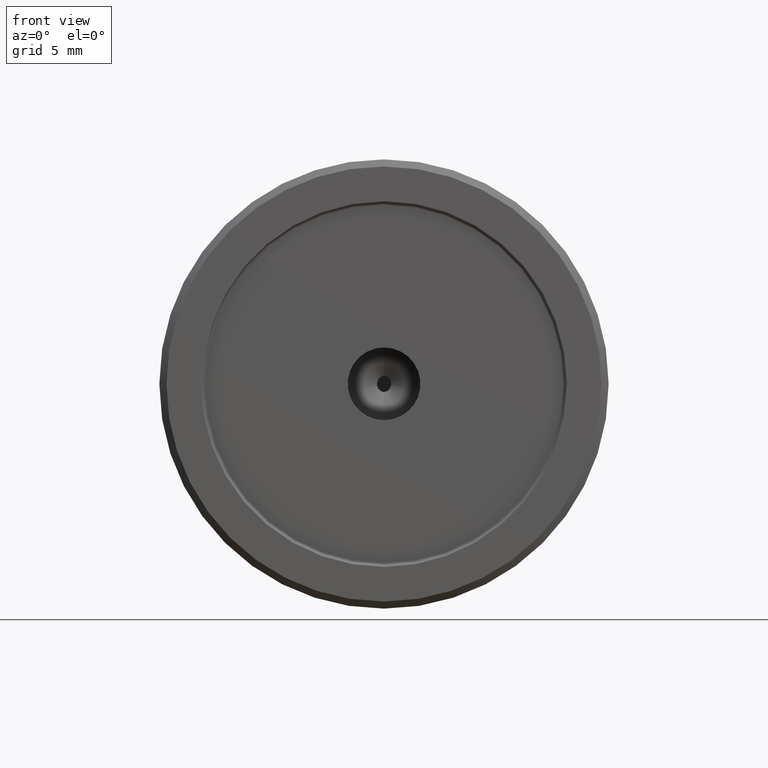
[diagram: clean part render]
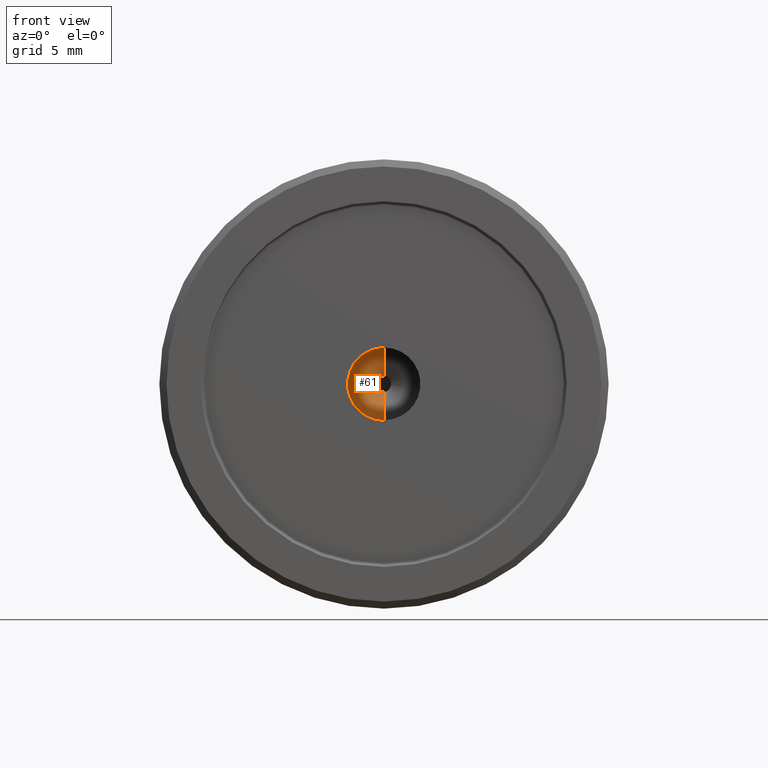
[diagram: same view with one face highlighted and labeled with its STEP entity id]
A machine part, front view. The second image highlights one B-rep face of the part: STEP entity #61.
In plain terms, the highlighted conical surface has half-angle 60 deg.
Its self-contained STEP definition (entity closure, byte-faithful):
#5 = DIRECTION ( 'NONE',  ( 1.060575238724906300E-016, -0.5000000000000008900, 0.8660254037844381500 ) ) ;
#15 = CARTESIAN_POINT ( 'NONE',  ( -0.4953031743955401100, 7.187964073096177100, 0.1372869650252201400 ) ) ;
#17 = CARTESIAN_POINT ( 'NONE',  ( -1.783172941650946600E-013, 7.149999999999773000, 0.5608415712975020100 ) ) ;
#28 = CARTESIAN_POINT ( 'NONE',  ( -0.4487137896083246400, 7.179874528605756400, -0.2773741397652108000 ) ) ;
#61 = ADVANCED_FACE ( 'NONE', ( #498 ), #556, .F. ) ;
#117 = EDGE_CURVE ( 'NONE', #143, #1119, #1405, .T. ) ;
#126 = CARTESIAN_POINT ( 'NONE',  ( -0.06880953127882907800, 7.150000000000001200, -0.5608415712957952600 ) ) ;
#135 = VECTOR ( 'NONE', #798, 1000.000000000000000 ) ;
#143 = VERTEX_POINT ( 'NONE', #17 ) ;
#181 = CARTESIAN_POINT ( 'NONE',  ( 0.0000000000000000000, 6.000000000000000000, 0.0000000000000000000 ) ) ;
#212 = AXIS2_PLACEMENT_3D ( 'NONE', #343, #444, #1096 ) ;
#224 = CARTESIAN_POINT ( 'NONE',  ( 3.126155884183447300E-016, 6.000000000000000000, 2.552699999999998900 ) ) ;
#322 = DIRECTION ( 'NONE',  ( 0.0000000000000000000, 0.0000000000000000000, -1.000000000000000000 ) ) ;
#343 = CARTESIAN_POINT ( 'NONE',  ( 0.0000000000000000000, 6.000000000000000000, 0.0000000000000000000 ) ) ;
#413 = VERTEX_POINT ( 'NONE', #1133 ) ;
#444 = DIRECTION ( 'NONE',  ( -0.0000000000000000000, -1.000000000000000000, -0.0000000000000000000 ) ) ;
#448 = CIRCLE ( 'NONE', #212, 2.552699999999998900 ) ;
#453 = CARTESIAN_POINT ( 'NONE',  ( -0.06902651425238975900, 7.150000000000006600, 0.5608415712957455200 ) ) ;
#462 = VERTEX_POINT ( 'NONE', #1238 ) ;
#498 = FACE_OUTER_BOUND ( 'NONE', #735, .T. ) ;
#538 = VECTOR ( 'NONE', #5, 1000.000000000000000 ) ;
#556 = CONICAL_SURFACE ( 'NONE', #1316, 2.552699999999998900, 1.047197551196596700 ) ;
#560 = CARTESIAN_POINT ( 'NONE',  ( -0.3149395566043107200, 7.164984373327921900, -0.4378278217467848600 ) ) ;
#567 = CARTESIAN_POINT ( 'NONE',  ( -0.3167634302735858900, 7.165171475456275200, 0.4359970244303398900 ) ) ;
#596 = ORIENTED_EDGE ( 'NONE', *, *, #753, .T. ) ;
#660 = CARTESIAN_POINT ( 'NONE',  ( -0.1383939637530901300, 7.152354352592148200, 0.5437026568042754300 ) ) ;
#672 = CARTESIAN_POINT ( 'NONE',  ( -0.4485784293480683500, 7.179891925949490900, 0.2768084215261448200 ) ) ;
#724 = DIRECTION ( 'NONE',  ( -0.0000000000000000000, -1.000000000000000000, -0.0000000000000000000 ) ) ;
#735 = EDGE_LOOP ( 'NONE', ( #1070, #1203, #596, #780 ) ) ;
#753 = EDGE_CURVE ( 'NONE', #1119, #413, #448, .T. ) ;
#762 = CARTESIAN_POINT ( 'NONE',  ( -0.2608995635610736300, 7.159900626083747900, -0.4819217685520304500 ) ) ;
#780 = ORIENTED_EDGE ( 'NONE', *, *, #1156, .F. ) ;
#798 = DIRECTION ( 'NONE',  ( 0.0000000000000000000, -0.5000000000000008900, -0.8660254037844381500 ) ) ;
#814 = CARTESIAN_POINT ( 'NONE',  ( 3.126155884183447800E-016, 6.000000000000000000, 2.552699999999998900 ) ) ;
#885 = CARTESIAN_POINT ( 'NONE',  ( -0.1376404491695788500, 7.152328889516172500, -0.5438795327432686100 ) ) ;
#1070 = ORIENTED_EDGE ( 'NONE', *, *, #1367, .F. ) ;
#1078 = LINE ( 'NONE', #1130, #135 ) ;
#1096 = DIRECTION ( 'NONE',  ( 0.0000000000000000000, 0.0000000000000000000, -1.000000000000000000 ) ) ;
#1119 = VERTEX_POINT ( 'NONE', #814 ) ;
#1130 = CARTESIAN_POINT ( 'NONE',  ( 0.0000000000000000000, 6.000000000000000000, -2.552699999999998900 ) ) ;
#1133 = CARTESIAN_POINT ( 'NONE',  ( 0.0000000000000000000, 6.000000000000000000, -2.552699999999998900 ) ) ;
#1156 = EDGE_CURVE ( 'NONE', #462, #413, #1078, .T. ) ;
#1203 = ORIENTED_EDGE ( 'NONE', *, *, #117, .T. ) ;
#1208 = CARTESIAN_POINT ( 'NONE',  ( -1.783172941650946600E-013, 7.149999999999773000, 0.5608415712975020100 ) ) ;
#1214 = CARTESIAN_POINT ( 'NONE',  ( -0.4949591730846769100, 7.187911046177810600, -0.1388499671723382500 ) ) ;
#1218 = CARTESIAN_POINT ( 'NONE',  ( 1.575050727416945300E-021, 7.149999999999999500, -0.5608415712957954800 ) ) ;
#1238 = CARTESIAN_POINT ( 'NONE',  ( 1.575050727416945300E-021, 7.149999999999999500, -0.5608415712957954800 ) ) ;
#1277 = B_SPLINE_CURVE_WITH_KNOTS ( 'NONE', 3,
 ( #1208, #453, #660, #1321, #567, #672, #15, #1214, #28, #560, #762, #885, #126, #1218 ),
 .UNSPECIFIED., .F., .F.,
 ( 4, 2, 2, 2, 2, 2, 4 ),
 ( 0.002062990948375934000, 0.002269174461918199500, 0.002475357975460465500, 0.002887725002544996600, 0.003300092029629527700, 0.003506275543171793200, 0.003712459056714058800 ),
 .UNSPECIFIED. ) ;
#1316 = AXIS2_PLACEMENT_3D ( 'NONE', #181, #724, #322 ) ;
#1321 = CARTESIAN_POINT ( 'NONE',  ( -0.2623372984466778000, 7.160010141655663900, 0.4809935858233339600 ) ) ;
#1367 = EDGE_CURVE ( 'NONE', #143, #462, #1277, .T. ) ;
#1405 = LINE ( 'NONE', #224, #538 ) ;